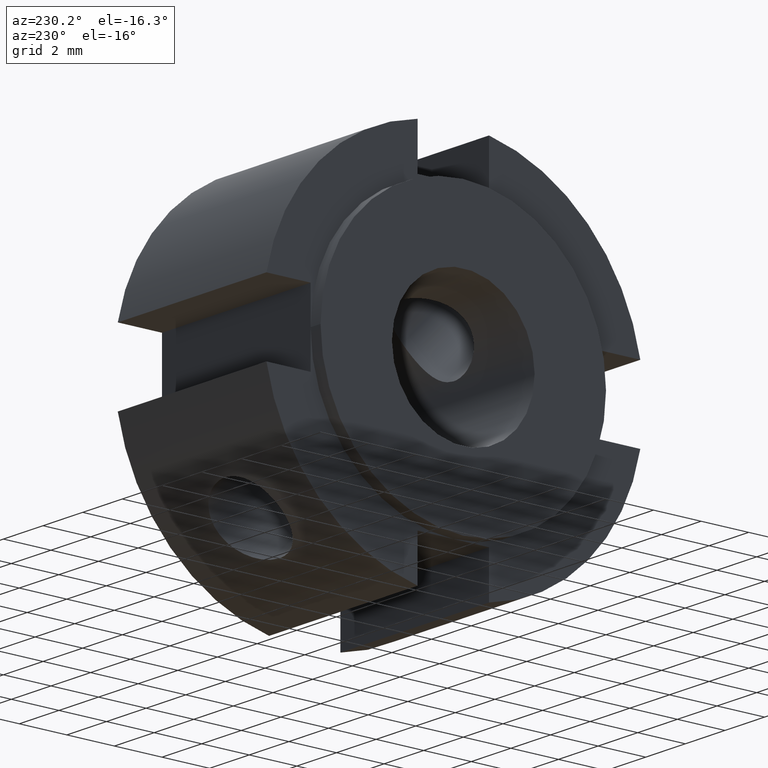
[diagram: clean part render]
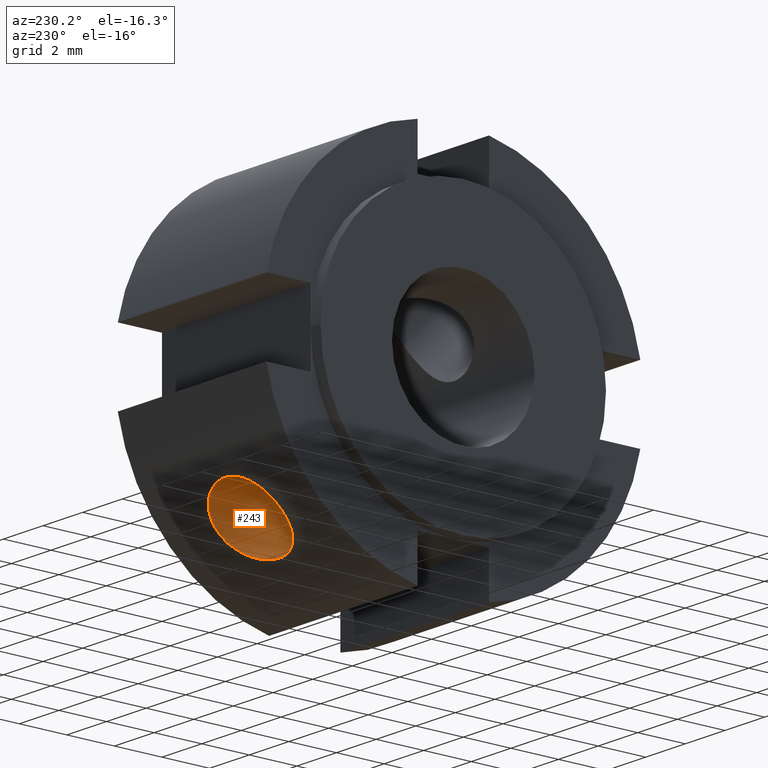
[diagram: same view with one face highlighted and labeled with its STEP entity id]
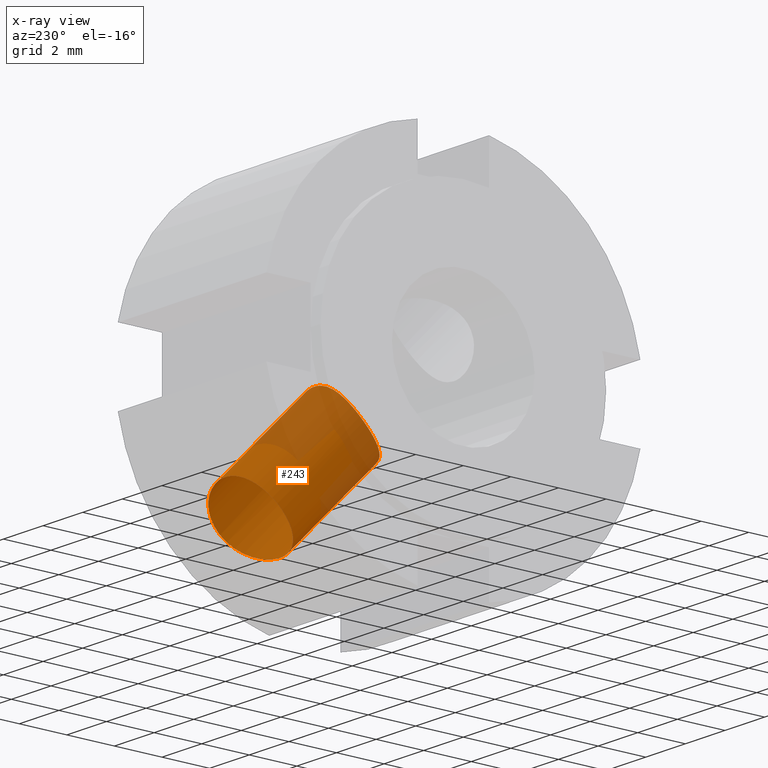
[diagram: x-ray of the same camera — body ghosted, the highlighted face saturated]
A machine part, auxiliary view. The second image highlights one B-rep face of the part: STEP entity #243.
The next image is the same camera in x-ray: the body ghosted, the highlighted face saturated — about 35% of this face is hidden behind the body in this view.
In plain terms, the highlighted cylindrical surface (bore or boss wall) has radius 1.621 mm, axis along (0, -0.7071, 0.7071).
Its self-contained STEP definition (entity closure, byte-faithful):
#156=CARTESIAN_POINT('',(3.999999999999997,16.703293088490057,-16.703293088490060));
#157=DIRECTION('',(0.0,-0.707106781186547,0.707106781186548));
#158=DIRECTION('',(1.0,0.0,0.0));
#159=AXIS2_PLACEMENT_3D('',#156,#157,#158);
#160=CYLINDRICAL_SURFACE('',#159,1.621000000000000);
#161=CARTESIAN_POINT('',(3.999999999999997,4.393290671292967,-6.685730855899758));
#162=VERTEX_POINT('',#161);
#163=CARTESIAN_POINT('',(3.999999999999997,4.393290671292969,-6.685730855899758));
#164=CARTESIAN_POINT('',(4.204151678523289,4.393290671292969,-6.685730855899758));
#165=CARTESIAN_POINT('',(4.421511715109523,4.428450602538506,-6.663027102326742));
#166=CARTESIAN_POINT('',(4.820717436724244,4.567858899072126,-6.568239479192604));
#167=CARTESIAN_POINT('',(5.002613546429853,4.671743977201032,-6.495834302020946));
#168=CARTESIAN_POINT('',(5.289818151764541,4.904229058570101,-6.322150735349686));
#169=CARTESIAN_POINT('',(5.414480832472941,5.048449307395186,-6.209125946749410));
#170=CARTESIAN_POINT('',(5.580087179413029,5.352722342950443,-5.948819122218709));
#171=CARTESIAN_POINT('',(5.620999999999996,5.512505743980473,-5.801202755004281));
#172=CARTESIAN_POINT('',(5.620999999999997,5.801202755004280,-5.512505743980474));
#173=CARTESIAN_POINT('',(5.580087179413030,5.948819122218706,-5.352722342950446));
#174=CARTESIAN_POINT('',(5.414480832472942,6.209125946749409,-5.048449307395187));
#175=CARTESIAN_POINT('',(5.289818151764542,6.322150735349688,-4.904229058570103));
#176=CARTESIAN_POINT('',(5.002613546429853,6.495834302020949,-4.671743977201035));
#177=CARTESIAN_POINT('',(4.820717436724245,6.568239479192602,-4.567858899072126));
#178=CARTESIAN_POINT('',(4.421511715109524,6.663027102326740,-4.428450602538505));
#179=CARTESIAN_POINT('',(4.204151678523288,6.685730855899758,-4.393290671292970));
#180=CARTESIAN_POINT('',(3.795848321476706,6.685730855899758,-4.393290671292970));
#181=CARTESIAN_POINT('',(3.578488284890469,6.663027102326740,-4.428450602538506));
#182=CARTESIAN_POINT('',(3.179282563275750,6.568239479192602,-4.567858899072125));
#183=CARTESIAN_POINT('',(2.997386453570142,6.495834302020947,-4.671743977201035));
#184=CARTESIAN_POINT('',(2.710181848235453,6.322150735349688,-4.904229058570103));
#185=CARTESIAN_POINT('',(2.585519167527052,6.209125946749409,-5.048449307395187));
#186=CARTESIAN_POINT('',(2.419912820586964,5.948819122218707,-5.352722342950446));
#187=CARTESIAN_POINT('',(2.378999999999997,5.801202755004280,-5.512505743980474));
#188=CARTESIAN_POINT('',(2.378999999999997,5.512505743980473,-5.801202755004282));
#189=CARTESIAN_POINT('',(2.419912820586964,5.352722342950443,-5.948819122218708));
#190=CARTESIAN_POINT('',(2.585519167527052,5.048449307395186,-6.209125946749409));
#191=CARTESIAN_POINT('',(2.710181848235452,4.904229058570102,-6.322150735349687));
#192=CARTESIAN_POINT('',(2.997386453570141,4.671743977201032,-6.495834302020946));
#193=CARTESIAN_POINT('',(3.179282563275750,4.567858899072126,-6.568239479192602));
#194=CARTESIAN_POINT('',(3.578488284890470,4.428450602538506,-6.663027102326740));
#195=CARTESIAN_POINT('',(3.795848321476705,4.393290671292969,-6.685730855899758));
#196=CARTESIAN_POINT('',(3.999999999999997,4.393290671292969,-6.685730855899758));
#197=B_SPLINE_CURVE_WITH_KNOTS('',3,(#163,#164,#165,#166,#167,#168,#169,#170,#171,#172,#173,#174,#175,#176,#177,#178,#179,#180,#181,#182,#183,#184,#185,#186,#187,#188,#189,#190,#191,#192,#193,#194,#195,#196),.UNSPECIFIED.,.T.,.U.,(4,2,2,2,2,2,2,2,2,2,2,2,2,2,2,2,4),(0.0,0.061245503556987,0.122491007113975,0.183732891374941,0.244974775635908,0.306216659896874,0.367458544157841,0.428704047714828,0.489949551271816,0.551195054828803,0.612440558385791,0.673682442646757,0.734924326907724,0.796166211168690,0.857408095429657,0.918653598986644,0.979899102543632),.UNSPECIFIED.);
#198=EDGE_CURVE('',#162,#162,#197,.T.);
#199=ORIENTED_EDGE('',*,*,#198,.F.);
#200=EDGE_LOOP('',(#199));
#201=FACE_OUTER_BOUND('',#200,.T.);
#202=CARTESIAN_POINT('',(3.999999999999997,0.638767162553067,-2.931207347159852));
#203=VERTEX_POINT('',#202);
#204=CARTESIAN_POINT('',(3.999999999999997,0.638767162553066,-2.931207347159852));
#205=CARTESIAN_POINT('',(3.791064664704070,0.638767162553066,-2.931207347159852));
#206=CARTESIAN_POINT('',(3.572307713902072,0.689227261632325,-2.921333819825382));
#207=CARTESIAN_POINT('',(3.174834133447138,0.874680584497777,-2.871264237078205));
#208=CARTESIAN_POINT('',(2.995583979050451,1.008153470477748,-2.829694711386082));
#209=CARTESIAN_POINT('',(2.712529424733118,1.291053246698170,-2.712294897999461));
#210=CARTESIAN_POINT('',(2.588356908928442,1.460749214067115,-2.628246132993324));
#211=CARTESIAN_POINT('',(2.421484312289462,1.802511078988434,-2.406744657441846));
#212=CARTESIAN_POINT('',(2.378999999999997,1.974157511191524,-2.268483175927760));
#213=CARTESIAN_POINT('',(2.378999999999997,2.268483175927760,-1.974157511191524));
#214=CARTESIAN_POINT('',(2.421484312289463,2.406744657441847,-1.802511078988434));
#215=CARTESIAN_POINT('',(2.588356908928444,2.628246132993325,-1.460749214067115));
#216=CARTESIAN_POINT('',(2.712529424733118,2.712294897999462,-1.291053246698171));
#217=CARTESIAN_POINT('',(2.995583979050450,2.829694711386084,-1.008153470477749));
#218=CARTESIAN_POINT('',(3.174834133447137,2.871264237078205,-0.874680584497777));
#219=CARTESIAN_POINT('',(3.572307713902073,2.921333819825382,-0.689227261632325));
#220=CARTESIAN_POINT('',(3.791064664704069,2.931207347159853,-0.638767162553065));
#221=CARTESIAN_POINT('',(4.208935335295925,2.931207347159853,-0.638767162553065));
#222=CARTESIAN_POINT('',(4.427692286097921,2.921333819825382,-0.689227261632325));
#223=CARTESIAN_POINT('',(4.825165866552857,2.871264237078205,-0.874680584497777));
#224=CARTESIAN_POINT('',(5.004416020949543,2.829694711386084,-1.008153470477749));
#225=CARTESIAN_POINT('',(5.287470575266875,2.712294897999462,-1.291053246698170));
#226=CARTESIAN_POINT('',(5.411643091071551,2.628246132993325,-1.460749214067115));
#227=CARTESIAN_POINT('',(5.578515687710532,2.406744657441847,-1.802511078988434));
#228=CARTESIAN_POINT('',(5.620999999999997,2.268483175927760,-1.974157511191524));
#229=CARTESIAN_POINT('',(5.620999999999997,1.974157511191524,-2.268483175927760));
#230=CARTESIAN_POINT('',(5.578515687710532,1.802511078988433,-2.406744657441847));
#231=CARTESIAN_POINT('',(5.411643091071551,1.460749214067115,-2.628246132993326));
#232=CARTESIAN_POINT('',(5.287470575266875,1.291053246698169,-2.712294897999461));
#233=CARTESIAN_POINT('',(5.004416020949543,1.008153470477748,-2.829694711386082));
#234=CARTESIAN_POINT('',(4.825165866552856,0.874680584497777,-2.871264237078205));
#235=CARTESIAN_POINT('',(4.427692286097922,0.689227261632325,-2.921333819825382));
#236=CARTESIAN_POINT('',(4.208935335295925,0.638767162553066,-2.931207347159852));
#237=CARTESIAN_POINT('',(3.999999999999997,0.638767162553066,-2.931207347159852));
#238=B_SPLINE_CURVE_WITH_KNOTS('',3,(#204,#205,#206,#207,#208,#209,#210,#211,#212,#213,#214,#215,#216,#217,#218,#219,#220,#221,#222,#223,#224,#225,#226,#227,#228,#229,#230,#231,#232,#233,#234,#235,#236,#237),.UNSPECIFIED.,.T.,.U.,(4,2,2,2,2,2,2,2,2,2,2,2,2,2,2,2,4),(0.0,0.062680600588778,0.125361201177556,0.187797103201226,0.250233005224895,0.312668907248564,0.375104809272233,0.437785409861011,0.500466010449790,0.563146611038568,0.625827211627346,0.688263113651015,0.750699015674684,0.813134917698354,0.875570819722023,0.938251420310801,1.000932020899579),.UNSPECIFIED.);
#239=EDGE_CURVE('',#203,#203,#238,.T.);
#240=ORIENTED_EDGE('',*,*,#239,.F.);
#241=EDGE_LOOP('',(#240));
#242=FACE_BOUND('',#241,.T.);
#243=ADVANCED_FACE('',(#201,#242),#160,.F.);